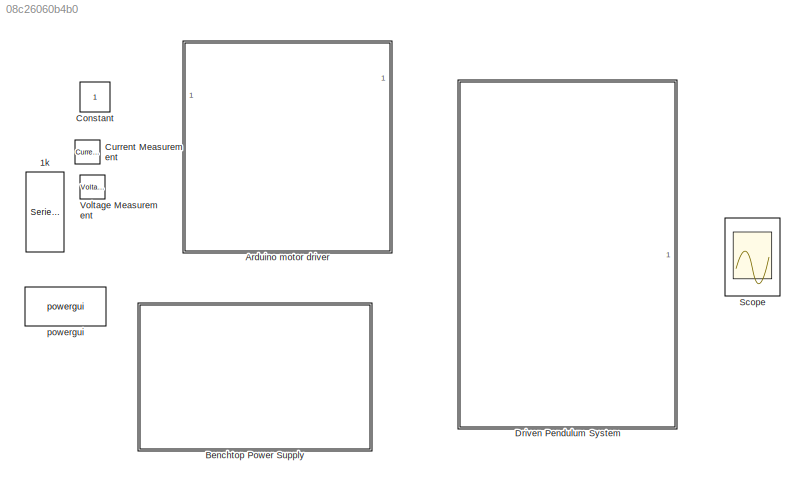
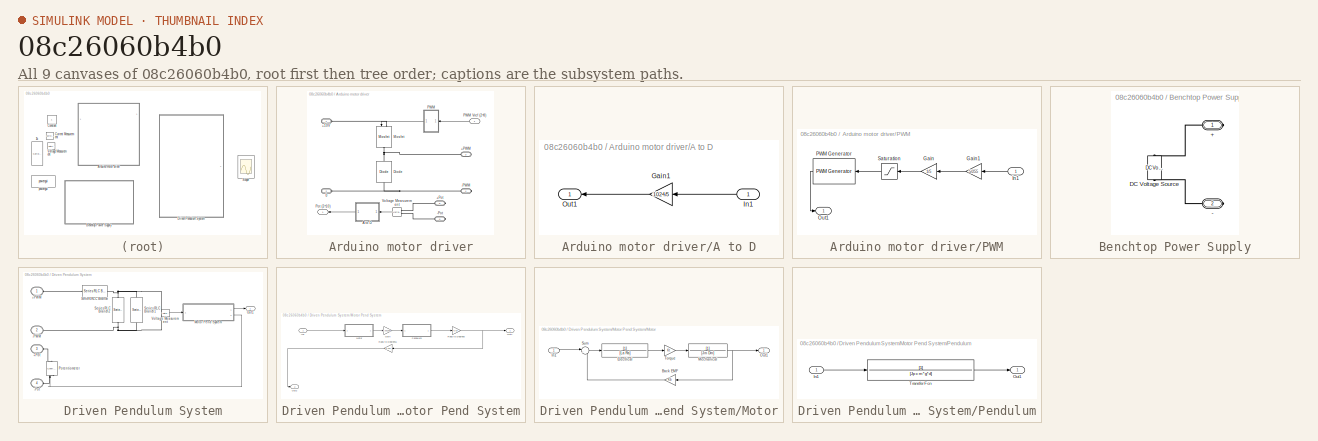
[diagram: thumbnail index - all 9 canvases of the model, root first then tree order]
MODEL slx_08c26060b4b0
KIND library
CONFIG AbsTol = auto
CONFIG EnableMultiTasking = off
CONFIG FixedStep = auto
CONFIG MaxStep = auto
CONFIG MinStep = auto
CONFIG RelTol = 1e-3
CONFIG SampleTimeConstraint = Unconstrained
CONFIG Solver = VariableStepAuto
CONFIG SolverName = VariableStepAuto
CONFIG StartTime = 0.0
CONFIG StopTime = 10.0
BLOCK [Reference] 1k  REF=powerlib/Elements/Series RLC Branch
  Ports = [0, 0, 0, 0, 0, 1, 1]
  SourceBlock = powerlib/Elements/Series RLC Branch
  SourceProductBaseCode = PS
  SourceProductName = Simscape Power Systems
  SourceType = Series RLC Branch
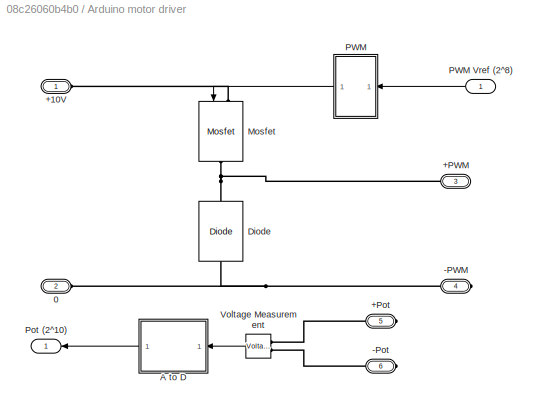
BLOCK [SubSystem] Arduino motor driver
  Permissions = NoReadOrWrite
  Ports = [1, 1, 0, 0, 0, 2, 4]
  RequestExecContextInheritance = off
BLOCK [PMIOPort] Arduino motor driver/+10V
  Side = Left
BLOCK [PMIOPort] Arduino motor driver/+PWM
  Port = 3
  Side = Right
BLOCK [PMIOPort] Arduino motor driver/+Pot
  Port = 5
  Side = Right
BLOCK [PMIOPort] Arduino motor driver/-PWM
  Port = 4
  Side = Right
BLOCK [PMIOPort] Arduino motor driver/-Pot
  Port = 6
  Side = Right
BLOCK [PMIOPort] Arduino motor driver/0
  Port = 2
  Side = Left
BLOCK [SubSystem] Arduino motor driver/A to D
  Ports = [1, 1]
  RequestExecContextInheritance = off
BLOCK [Gain] Arduino motor driver/A to D/Gain1
  Gain = 1024/5
  OutDataTypeStr = Inherit: Inherit via internal rule
  ParamDataTypeStr = Inherit: Inherit via internal rule
  SaturateOnIntegerOverflow = off
BLOCK [Inport] Arduino motor driver/A to D/In1
  IconDisplay = Port number
BLOCK [Outport] Arduino motor driver/A to D/Out1
  IconDisplay = Port number
BLOCK [Reference] Arduino motor driver/Diode  REF=powerlib/Power
Electronics/Diode
  Ports = [0, 0, 0, 0, 0, 1, 1]
  SourceBlock = powerlib/Power\nElectronics/Diode
  SourceProductBaseCode = PS
  SourceProductName = Simscape Power Systems
  SourceType = Diode
BLOCK [Reference] Arduino motor driver/Mosfet  REF=powerlib/Power
Electronics/Mosfet
  Ports = [1, 0, 0, 0, 0, 1, 1]
  SourceBlock = powerlib/Power\nElectronics/Mosfet
  SourceProductBaseCode = PS
  SourceProductName = Simscape Power Systems
  SourceType = Mosfet
BLOCK [SubSystem] Arduino motor driver/PWM
  Ports = [1, 1]
  RequestExecContextInheritance = off
BLOCK [Inport] Arduino motor driver/PWM Vref (2^8)
  IconDisplay = Port number
BLOCK [Gain] Arduino motor driver/PWM/Gain
  Gain = 1/5
  OutDataTypeStr = Inherit: Inherit via internal rule
  ParamDataTypeStr = Inherit: Inherit via internal rule
  SaturateOnIntegerOverflow = off
BLOCK [Gain] Arduino motor driver/PWM/Gain1
  Gain = 5/255
  OutDataTypeStr = Inherit: Inherit via internal rule
  ParamDataTypeStr = Inherit: Inherit via internal rule
  SaturateOnIntegerOverflow = off
BLOCK [Inport] Arduino motor driver/PWM/In1
  IconDisplay = Port number
BLOCK [Outport] Arduino motor driver/PWM/Out1
  IconDisplay = Port number
BLOCK [Reference] Arduino motor driver/PWM/PWM Generator  REF=pePwmGenerator/PWM Generator
  Ports = [1, 1]
  SourceBlock = pePwmGenerator/PWM Generator
  SourceType = PWM Generator
BLOCK [Saturate] Arduino motor driver/PWM/Saturation
  InputPortMap = u0
  LowerLimit = 0
  Ports = [1, 1]
  UpperLimit = 1
BLOCK [Outport] Arduino motor driver/Pot (2^10)
  IconDisplay = Port number
BLOCK [Reference] Arduino motor driver/Voltage Measurement  REF=powerlib/Measurements/Voltage Measurement
  Ports = [0, 1, 0, 0, 0, 2]
  SourceBlock = powerlib/Measurements/Voltage Measurement
  SourceProductBaseCode = PS
  SourceProductName = Simscape Power Systems
  SourceType = Voltage Measurement
  UserDataPersistent = on
BLOCK [SubSystem] Benchtop Power Supply
  Permissions = NoReadOrWrite
  Ports = [0, 0, 0, 0, 0, 0, 2]
  RequestExecContextInheritance = off
BLOCK [PMIOPort] Benchtop Power Supply/+
  Side = Right
BLOCK [PMIOPort] Benchtop Power Supply/-
  Port = 2
  Side = Right
BLOCK [Reference] Benchtop Power Supply/DC Voltage Source  REF=powerlib/Electrical
Sources/DC Voltage Source
  Ports = [0, 0, 0, 0, 0, 1, 1]
  SourceBlock = powerlib/Electrical\nSources/DC Voltage Source
  SourceProductBaseCode = PS
  SourceProductName = Simscape Power Systems
  SourceType = DC Voltage Source
BLOCK [Constant] Constant
BLOCK [Reference] Current Measurement  REF=powerlib/Measurements/Current Measurement
  Ports = [0, 1, 0, 0, 0, 1, 1]
  SourceBlock = powerlib/Measurements/Current Measurement
  SourceProductBaseCode = PS
  SourceProductName = Simscape Power Systems
  SourceType = Current Measurement
  UserDataPersistent = on
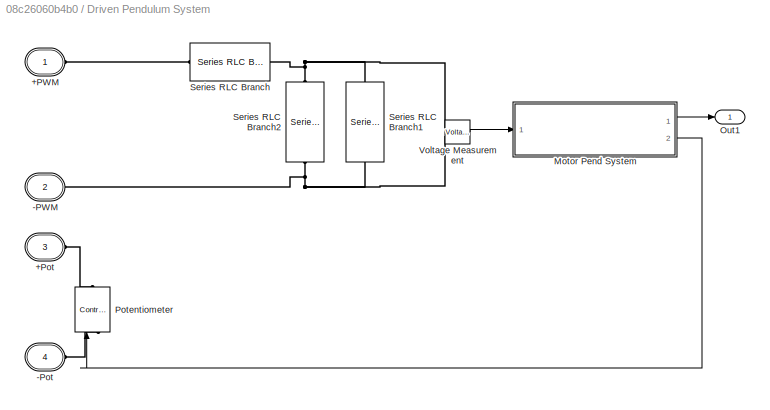
BLOCK [SubSystem] Driven Pendulum System
  Permissions = NoReadOrWrite
  Ports = [0, 1, 0, 0, 0, 4]
  RequestExecContextInheritance = off
BLOCK [PMIOPort] Driven Pendulum System/+PWM
  Side = Left
  Tag = PMCPort
BLOCK [PMIOPort] Driven Pendulum System/+Pot
  Port = 3
  Side = Left
  Tag = PMCPort
BLOCK [PMIOPort] Driven Pendulum System/-PWM
  Port = 2
  Side = Left
  Tag = PMCPort
BLOCK [PMIOPort] Driven Pendulum System/-Pot
  Port = 4
  Side = Left
  Tag = PMCPort
BLOCK [SubSystem] Driven Pendulum System/Motor Pend System
  Ports = [1, 2]
  RequestExecContextInheritance = off
BLOCK [Gain] Driven Pendulum System/Motor Pend System/Gain
  Gain = 0.001855
  OutDataTypeStr = Inherit: Inherit via internal rule
  ParamDataTypeStr = Inherit: Inherit via internal rule
  SaturateOnIntegerOverflow = off
BLOCK [Inport] Driven Pendulum System/Motor Pend System/In1
  IconDisplay = Port number
BLOCK [SubSystem] Driven Pendulum System/Motor Pend System/Motor
  Ports = [1, 1]
  RequestExecContextInheritance = off
BLOCK [Gain] Driven Pendulum System/Motor Pend System/Motor/Back EMF
  Gain = Kb
  OutDataTypeStr = Inherit: Inherit via internal rule
  ParamDataTypeStr = Inherit: Inherit via internal rule
  SaturateOnIntegerOverflow = off
BLOCK [TransferFcn] Driven Pendulum System/Motor Pend System/Motor/Electrical
  Denominator = [La Ra]
BLOCK [Inport] Driven Pendulum System/Motor Pend System/Motor/In1
  IconDisplay = Port number
BLOCK [TransferFcn] Driven Pendulum System/Motor Pend System/Motor/Mechanical
  Denominator = [Jm Dm]
BLOCK [Outport] Driven Pendulum System/Motor Pend System/Motor/Out1
  IconDisplay = Port number
BLOCK [Sum] Driven Pendulum System/Motor Pend System/Motor/Sum
  IconShape = round
  InputSameDT = off
  Inputs = |+-
  OutDataTypeStr = Inherit: Inherit via internal rule
  Ports = [2, 1]
  SaturateOnIntegerOverflow = off
BLOCK [Gain] Driven Pendulum System/Motor Pend System/Motor/Torque
  Gain = Kt
  OutDataTypeStr = Inherit: Inherit via internal rule
  ParamDataTypeStr = Inherit: Inherit via internal rule
  SaturateOnIntegerOverflow = off
BLOCK [Outport] Driven Pendulum System/Motor Pend System/Out1
  IconDisplay = Port number
BLOCK [Outport] Driven Pendulum System/Motor Pend System/Out2
  IconDisplay = Port number
  Port = 2
BLOCK [SubSystem] Driven Pendulum System/Motor Pend System/Pendulum
  Ports = [1, 1]
  RequestExecContextInheritance = off
BLOCK [Inport] Driven Pendulum System/Motor Pend System/Pendulum/In1
  IconDisplay = Port number
BLOCK [Outport] Driven Pendulum System/Motor Pend System/Pendulum/Out1
  IconDisplay = Port number
BLOCK [TransferFcn] Driven Pendulum System/Motor Pend System/Pendulum/Transfer Fcn
  Denominator = [Jp c m*g*d]
BLOCK [Gain] Driven Pendulum System/Motor Pend System/Rads to Degrees
  Gain = 6.53
  OutDataTypeStr = Inherit: Inherit via internal rule
  ParamDataTypeStr = Inherit: Inherit via internal rule
  SaturateOnIntegerOverflow = off
BLOCK [Gain] Driven Pendulum System/Motor Pend System/Rads to Degrees1
  Gain = 0.122
  OutDataTypeStr = Inherit: Inherit via internal rule
  ParamDataTypeStr = Inherit: Inherit via internal rule
  SaturateOnIntegerOverflow = off
BLOCK [Outport] Driven Pendulum System/Out1
  IconDisplay = Port number
BLOCK [Reference] Driven Pendulum System/Potentiometer  REF=powerlib/Electrical
Sources/Controlled Voltage Source
  Ports = [1, 0, 0, 0, 0, 1, 1]
  SourceBlock = powerlib/Electrical\nSources/Controlled Voltage Source
  SourceProductBaseCode = PS
  SourceProductName = Simscape Power Systems
  SourceType = Controlled Voltage Source
BLOCK [Reference] Driven Pendulum System/Series RLC Branch  REF=powerlib/Elements/Series RLC Branch
  Ports = [0, 0, 0, 0, 0, 1, 1]
  SourceBlock = powerlib/Elements/Series RLC Branch
  SourceProductBaseCode = PS
  SourceProductName = Simscape Power Systems
  SourceType = Series RLC Branch
BLOCK [Reference] Driven Pendulum System/Series RLC Branch1  REF=powerlib/Elements/Series RLC Branch
  Ports = [0, 0, 0, 0, 0, 1, 1]
  SourceBlock = powerlib/Elements/Series RLC Branch
  SourceProductBaseCode = PS
  SourceProductName = Simscape Power Systems
  SourceType = Series RLC Branch
BLOCK [Reference] Driven Pendulum System/Series RLC Branch2  REF=powerlib/Elements/Series RLC Branch
  Ports = [0, 0, 0, 0, 0, 1, 1]
  SourceBlock = powerlib/Elements/Series RLC Branch
  SourceProductBaseCode = PS
  SourceProductName = Simscape Power Systems
  SourceType = Series RLC Branch
BLOCK [Reference] Driven Pendulum System/Voltage Measurement  REF=powerlib/Measurements/Voltage Measurement
  Ports = [0, 1, 0, 0, 0, 2]
  SourceBlock = powerlib/Measurements/Voltage Measurement
  SourceProductBaseCode = PS
  SourceProductName = Simscape Power Systems
  SourceType = Voltage Measurement
  UserDataPersistent = on
BLOCK [Scope] Scope
  Floating = off
  NumInputPorts = 1
  Ports = [1]
  ScopeSpecificationString = Simulink.scopes.TimeScopeBlockCfg('CurrentConfiguration', extmgr.ConfigurationSet(extmgr.Configuration('Core','General UI',true,'FigureColor',[1 1 1]),extmgr.Configuration('Core','Source UI',true),extmgr.Configuration('Sources','WiredSimulink',true),extmgr.Configuration('Visuals','Time Domain',true,'SerializedDisplays',{struct('MinYLimReal','-5.12811','MaxYLimReal','46.15299','YLabelReal','','MinY...<+1634ch>
BLOCK [Reference] Voltage Measurement  REF=powerlib/Measurements/Voltage Measurement
  Ports = [0, 1, 0, 0, 0, 2]
  SourceBlock = powerlib/Measurements/Voltage Measurement
  SourceProductBaseCode = PS
  SourceProductName = Simscape Power Systems
  SourceType = Voltage Measurement
  UserDataPersistent = on
BLOCK [Reference] powergui  REF=powerlib/powergui
  Ports = []
  Priority = 1
  SourceBlock = powerlib/powergui
  SourceProductBaseCode = PS
  SourceProductName = Simscape Power Systems
  SourceType = PSB option menu block
LINE Arduino motor driver/A to D/Gain1:1 -> Arduino motor driver/A to D/Out1:1
LINE Arduino motor driver/A to D/In1:1 -> Arduino motor driver/A to D/Gain1:1
LINE Arduino motor driver/A to D:1 -> Arduino motor driver/Pot (2^10):1
LINE Arduino motor driver/PWM Vref (2^8):1 -> Arduino motor driver/PWM:1
LINE Arduino motor driver/PWM/Gain1:1 -> Arduino motor driver/PWM/Gain:1
LINE Arduino motor driver/PWM/Gain:1 -> Arduino motor driver/PWM/Saturation:1
LINE Arduino motor driver/PWM/In1:1 -> Arduino motor driver/PWM/Gain1:1
LINE Arduino motor driver/PWM/PWM Generator:1 -> Arduino motor driver/PWM/Out1:1
LINE Arduino motor driver/PWM/Saturation:1 -> Arduino motor driver/PWM/PWM Generator:1
LINE Arduino motor driver/PWM:1 -> Arduino motor driver/Mosfet:1
LINE Arduino motor driver/Voltage Measurement:1 -> Arduino motor driver/A to D:1
LINE Driven Pendulum System/Motor Pend System/Gain:1 -> Driven Pendulum System/Motor Pend System/Pendulum:1
LINE Driven Pendulum System/Motor Pend System/In1:1 -> Driven Pendulum System/Motor Pend System/Motor:1
LINE Driven Pendulum System/Motor Pend System/Motor/Back EMF:1 -> Driven Pendulum System/Motor Pend System/Motor/Sum:2
LINE Driven Pendulum System/Motor Pend System/Motor/Electrical:1 -> Driven Pendulum System/Motor Pend System/Motor/Torque:1
LINE Driven Pendulum System/Motor Pend System/Motor/In1:1 -> Driven Pendulum System/Motor Pend System/Motor/Sum:1
NET Driven Pendulum System/Motor Pend System/Motor/Mechanical:1 -> Driven Pendulum System/Motor Pend System/Motor/Back EMF:1, Driven Pendulum System/Motor Pend System/Motor/Out1:1
LINE Driven Pendulum System/Motor Pend System/Motor/Sum:1 -> Driven Pendulum System/Motor Pend System/Motor/Electrical:1
LINE Driven Pendulum System/Motor Pend System/Motor/Torque:1 -> Driven Pendulum System/Motor Pend System/Motor/Mechanical:1
LINE Driven Pendulum System/Motor Pend System/Motor:1 -> Driven Pendulum System/Motor Pend System/Gain:1
LINE Driven Pendulum System/Motor Pend System/Pendulum/In1:1 -> Driven Pendulum System/Motor Pend System/Pendulum/Transfer Fcn:1
LINE Driven Pendulum System/Motor Pend System/Pendulum/Transfer Fcn:1 -> Driven Pendulum System/Motor Pend System/Pendulum/Out1:1
LINE Driven Pendulum System/Motor Pend System/Pendulum:1 -> Driven Pendulum System/Motor Pend System/Rads to Degrees:1
LINE Driven Pendulum System/Motor Pend System/Rads to Degrees1:1 -> Driven Pendulum System/Motor Pend System/Out2:1
NET Driven Pendulum System/Motor Pend System/Rads to Degrees:1 -> Driven Pendulum System/Motor Pend System/Out1:1, Driven Pendulum System/Motor Pend System/Rads to Degrees1:1
LINE Driven Pendulum System/Motor Pend System:1 -> Driven Pendulum System/Out1:1
LINE Driven Pendulum System/Motor Pend System:2 -> Driven Pendulum System/Potentiometer:1
LINE Driven Pendulum System/Voltage Measurement:1 -> Driven Pendulum System/Motor Pend System:1
PLINE Arduino motor driver/+10V:RConn1 -- Arduino motor driver/Mosfet:LConn1
PNET net1: Arduino motor driver/+PWM:RConn1 -- Arduino motor driver/Diode:RConn1 -- Arduino motor driver/Mosfet:RConn1
PLINE Arduino motor driver/+Pot:RConn1 -- Arduino motor driver/Voltage Measurement:LConn1
PNET net2: Arduino motor driver/-PWM:RConn1 -- Arduino motor driver/0:RConn1 -- Arduino motor driver/Diode:LConn1
PLINE Arduino motor driver/-Pot:RConn1 -- Arduino motor driver/Voltage Measurement:LConn2
PLINE Benchtop Power Supply/+:RConn1 -- Benchtop Power Supply/DC Voltage Source:RConn1
PLINE Benchtop Power Supply/-:RConn1 -- Benchtop Power Supply/DC Voltage Source:LConn1
PLINE Driven Pendulum System/+PWM:RConn1 -- Driven Pendulum System/Series RLC Branch:LConn1
PLINE Driven Pendulum System/+Pot:RConn1 -- Driven Pendulum System/Potentiometer:RConn1
PNET net3: Driven Pendulum System/-PWM:RConn1 -- Driven Pendulum System/Series RLC Branch1:RConn1 -- Driven Pendulum System/Series RLC Branch2:RConn1 -- Driven Pendulum System/Voltage Measurement:LConn2
PLINE Driven Pendulum System/-Pot:RConn1 -- Driven Pendulum System/Potentiometer:LConn1
PNET net4: Driven Pendulum System/Series RLC Branch1:LConn1 -- Driven Pendulum System/Series RLC Branch2:LConn1 -- Driven Pendulum System/Series RLC Branch:RConn1 -- Driven Pendulum System/Voltage Measurement:LConn1
note: NET lines group one-source signal fan-out (src -> all destinations, sorted); 1:1 wires keep LINE; PNET lines group multi-terminal physical nets as a canonical sorted terminal list (undirected conserving connections); 2-terminal nets keep the pairwise PLINE form
